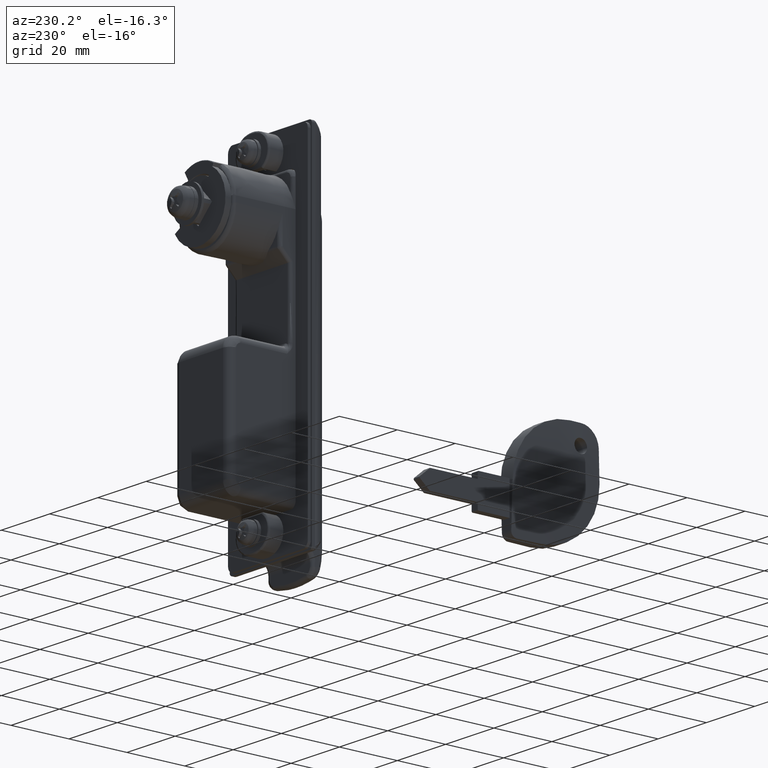
[diagram: clean part render]
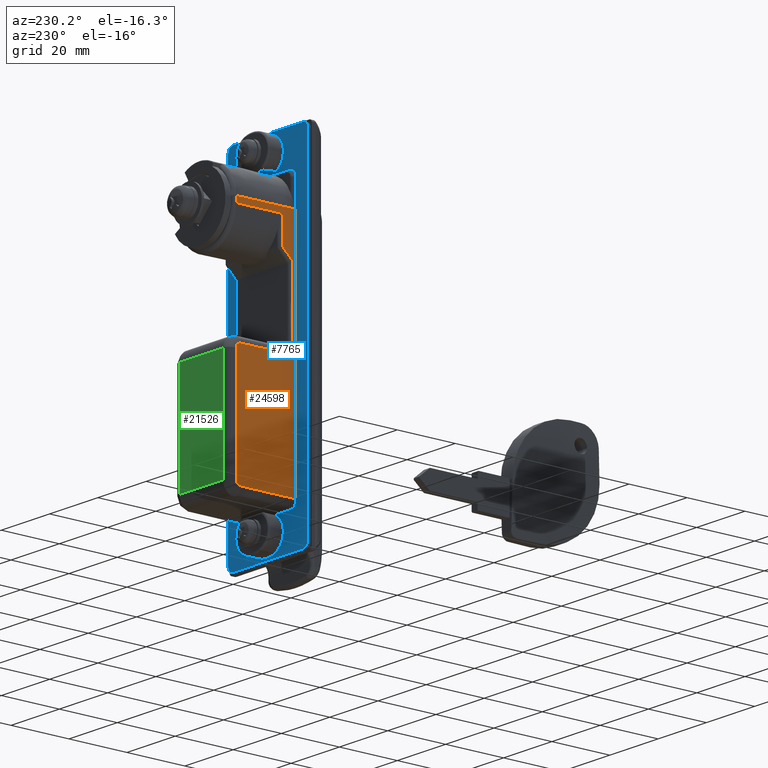
[diagram: same view with three faces highlighted in distinct colors, each labeled with its STEP entity id]
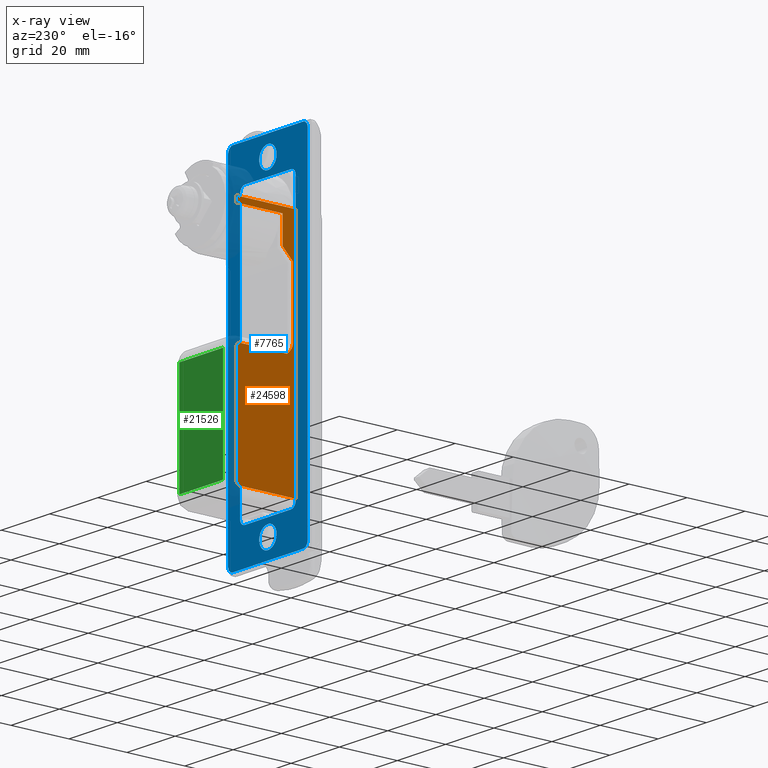
[diagram: x-ray of the same camera — body ghosted, the three highlighted faces saturated]
A machine part, auxiliary view with three faces highlighted in distinct colors.
The next image is the same camera in x-ray (body ghosted, the three faces saturated) — at least one of them is partly hidden behind the body in this view.
Their STEP definitions:

[orange] entity #24598 — the highlighted face is a freeform B-spline surface patch.
#22011=CARTESIAN_POINT('',(-11.500000000000000,28.500000000037399,-0.999999999985167));
#22012=VERTEX_POINT('',#22011);
#22026=CARTESIAN_POINT('',(-11.500000000000000,28.500000000037399,1.000000000015006));
#22027=VERTEX_POINT('',#22026);
#22028=CARTESIAN_POINT('',(-11.500000000000000,28.500000000037399,1.000000000015006));
#22029=CARTESIAN_POINT('',(-11.500000000000000,28.500000000037399,-0.999999999985167));
#22030=QUASI_UNIFORM_CURVE('',1,(#22028,#22029),.UNSPECIFIED.,.F.,.U.);
#22031=EDGE_CURVE('',#22027,#22012,#22030,.T.);
#22444=CARTESIAN_POINT('',(-11.499999999999760,8.000000000000231,10.000000000018460));
#22445=VERTEX_POINT('',#22444);
#22491=CARTESIAN_POINT('',(-11.500000000000000,8.000000000000231,1.000000000015006));
#22492=VERTEX_POINT('',#22491);
#22517=CARTESIAN_POINT('',(-11.499999999999760,8.000000000000231,10.000000000018460));
#22518=CARTESIAN_POINT('',(-11.500000000000000,8.000000000000231,1.000000000015006));
#22519=QUASI_UNIFORM_CURVE('',1,(#22517,#22518),.UNSPECIFIED.,.F.,.U.);
#22520=EDGE_CURVE('',#22445,#22492,#22519,.T.);
#23047=CARTESIAN_POINT('',(-11.499999999999760,8.999999999926670,-36.337722339830847));
#23048=VERTEX_POINT('',#23047);
#23059=CARTESIAN_POINT('',(-11.499999999999760,10.999999999926660,-39.499999999999197));
#23060=VERTEX_POINT('',#23059);
#23088=CARTESIAN_POINT('',(-11.499999999999760,8.999999999926670,-36.337722339830847));
#23089=CARTESIAN_POINT('',(-11.499999999999771,8.999999999926677,-36.500899916687878));
#23090=CARTESIAN_POINT('',(-11.499999999999760,9.016151110124476,-36.661272146820508));
#23091=CARTESIAN_POINT('',(-11.499999999999760,9.061451156469461,-36.898170177665122));
#23092=CARTESIAN_POINT('',(-11.499999999999760,9.080090570570690,-36.976521416559713));
#23093=CARTESIAN_POINT('',(-11.499999999999760,9.124163929874779,-37.132043726834908));
#23094=CARTESIAN_POINT('',(-11.499999999999760,9.149737217216908,-37.209556756030928));
#23095=CARTESIAN_POINT('',(-11.499999999999760,9.235185518348388,-37.437374300737673));
#23096=CARTESIAN_POINT('',(-11.499999999999760,9.303552753331655,-37.582944592164608));
#23097=CARTESIAN_POINT('',(-11.499999999999760,9.459205951650956,-37.863618254668602));
#23098=CARTESIAN_POINT('',(-11.499999999999760,9.546529948660597,-37.998700583346562));
#23099=CARTESIAN_POINT('',(-11.499999999999760,9.689455264253461,-38.194718563034982));
#23100=CARTESIAN_POINT('',(-11.499999999999760,9.739167925378572,-38.259037748883813));
#23101=CARTESIAN_POINT('',(-11.499999999999760,9.841207792355133,-38.384525173705462));
#23102=CARTESIAN_POINT('',(-11.499999999999760,9.998502716011254,-38.568491444911267));
#23103=CARTESIAN_POINT('',(-11.499999999999760,10.166643536216210,-38.741535649950350));
#23104=CARTESIAN_POINT('',(-11.499999999999760,10.397304834447860,-38.965742255718268));
#23105=CARTESIAN_POINT('',(-11.499999999999760,10.515877124079120,-39.074581152378322));
#23106=CARTESIAN_POINT('',(-11.499999999999760,10.696198733749171,-39.235359023518427));
#23107=CARTESIAN_POINT('',(-11.499999999999760,10.756715726839310,-39.288538979452888));
#23108=CARTESIAN_POINT('',(-11.499999999999760,10.878161242043539,-39.394484472171740));
#23109=CARTESIAN_POINT('',(-11.499999999999760,10.939234581588940,-39.447375428602847));
#23110=CARTESIAN_POINT('',(-11.499999999999760,10.999999999926660,-39.499999999999197));
#23111=B_SPLINE_CURVE_WITH_KNOTS('',3,(#23088,#23089,#23090,#23091,#23092,#23093,#23094,#23095,#23096,#23097,#23098,#23099,#23100,#23101,#23102,#23103,#23104,#23105,#23106,#23107,#23108,#23109,#23110),.UNSPECIFIED.,.F.,.U.,(4,2,2,2,2,2,2,1,2,2,2,4),(0.0,0.125000000000002,0.187500000000003,0.250000000000004,0.375000000000001,0.499999999999998,0.562499999999996,0.624999999999995,0.749999999999997,0.874999999999998,0.937499999999999,1.0),.UNSPECIFIED.);
#23112=EDGE_CURVE('',#23048,#23060,#23111,.T.);
#23134=CARTESIAN_POINT('',(-11.499999999999760,8.999999999926670,-13.585786437626380));
#23135=VERTEX_POINT('',#23134);
#23148=CARTESIAN_POINT('',(-11.499999999999760,8.999999999926670,-13.585786437626380));
#23149=CARTESIAN_POINT('',(-11.499999999999760,8.999999999926670,-36.337722339830847));
#23150=QUASI_UNIFORM_CURVE('',1,(#23148,#23149),.UNSPECIFIED.,.F.,.U.);
#23151=EDGE_CURVE('',#23135,#23048,#23150,.T.);
#23170=CARTESIAN_POINT('',(-11.499999999999760,12.515788983960420,-10.069997453591441));
#23171=VERTEX_POINT('',#23170);
#23187=CARTESIAN_POINT('',(-11.499999999999760,12.515788983960420,-10.069997453591441));
#23188=CARTESIAN_POINT('',(-11.499999999999760,8.999999999926670,-13.585786437626380));
#23189=QUASI_UNIFORM_CURVE('',1,(#23187,#23188),.UNSPECIFIED.,.F.,.U.);
#23190=EDGE_CURVE('',#23171,#23135,#23189,.T.);
#23261=CARTESIAN_POINT('',(-11.499999999999760,12.515788983960420,-0.999999999985167));
#23262=VERTEX_POINT('',#23261);
#23289=CARTESIAN_POINT('',(-11.499999999999760,12.515788983960420,-0.999999999985167));
#23290=CARTESIAN_POINT('',(-11.499999999999760,12.515788983960420,-10.069997453591441));
#23291=QUASI_UNIFORM_CURVE('',1,(#23289,#23290),.UNSPECIFIED.,.F.,.U.);
#23292=EDGE_CURVE('',#23262,#23171,#23291,.T.);
#23840=CARTESIAN_POINT('',(-11.499999999999760,7.000000000000231,10.000000000018460));
#23841=VERTEX_POINT('',#23840);
#23842=CARTESIAN_POINT('',(-11.499999999999760,7.000000000000231,10.000000000018460));
#23843=CARTESIAN_POINT('',(-11.499999999999760,8.000000000000231,10.000000000018460));
#23844=QUASI_UNIFORM_CURVE('',1,(#23842,#23843),.UNSPECIFIED.,.F.,.U.);
#23845=EDGE_CURVE('',#23841,#22445,#23844,.T.);
#23876=CARTESIAN_POINT('',(-11.499999999999760,26.999999999966050,-39.499999999999197));
#23877=VERTEX_POINT('',#23876);
#23878=CARTESIAN_POINT('',(-11.499999999999760,10.999999999926660,-39.499999999999197));
#23879=CARTESIAN_POINT('',(-11.499999999999760,26.999999999966050,-39.499999999999197));
#23880=QUASI_UNIFORM_CURVE('',1,(#23878,#23879),.UNSPECIFIED.,.F.,.U.);
#23881=EDGE_CURVE('',#23060,#23877,#23880,.T.);
#23944=CARTESIAN_POINT('',(-11.499999999999760,28.499999999966050,-40.999999999999197));
#23945=VERTEX_POINT('',#23944);
#23959=CARTESIAN_POINT('',(-11.499999999999760,26.999999999966050,-39.499999999999197));
#23960=CARTESIAN_POINT('',(-11.499999999999758,28.499999999966054,-39.499999999999211));
#23961=CARTESIAN_POINT('',(-11.499999999999760,28.499999999966050,-40.999999999999197));
#23969=(BOUNDED_CURVE()B_SPLINE_CURVE(2,(#23959,#23960,#23961),.UNSPECIFIED.,.F.,.U.)CURVE()GEOMETRIC_REPRESENTATION_ITEM()QUASI_UNIFORM_CURVE()RATIONAL_B_SPLINE_CURVE((1.0,0.707106781186548,1.0))REPRESENTATION_ITEM(''));
#23970=EDGE_CURVE('',#23877,#23945,#23969,.T.);
#23991=CARTESIAN_POINT('',(-11.499999999999760,28.499999999966050,-77.500000000000000));
#23992=VERTEX_POINT('',#23991);
#24006=CARTESIAN_POINT('',(-11.499999999999760,28.499999999966050,-40.999999999999197));
#24007=CARTESIAN_POINT('',(-11.499999999999760,28.499999999966050,-77.500000000000000));
#24008=QUASI_UNIFORM_CURVE('',1,(#24006,#24007),.UNSPECIFIED.,.F.,.U.);
#24009=EDGE_CURVE('',#23945,#23992,#24008,.T.);
#24051=CARTESIAN_POINT('',(-11.499999999999760,26.999999999966050,-79.0));
#24052=VERTEX_POINT('',#24051);
#24066=CARTESIAN_POINT('',(-11.499999999999760,28.499999999966050,-77.500000000000000));
#24067=CARTESIAN_POINT('',(-11.499999999999758,28.499999999966054,-79.0));
#24068=CARTESIAN_POINT('',(-11.499999999999760,26.999999999966050,-79.0));
#24076=(BOUNDED_CURVE()B_SPLINE_CURVE(2,(#24066,#24067,#24068),.UNSPECIFIED.,.F.,.U.)CURVE()GEOMETRIC_REPRESENTATION_ITEM()QUASI_UNIFORM_CURVE()RATIONAL_B_SPLINE_CURVE((1.0,0.707106781186548,1.0))REPRESENTATION_ITEM(''));
#24077=EDGE_CURVE('',#23992,#24052,#24076,.T.);
#24110=CARTESIAN_POINT('',(-11.499999999999760,7.000000000000231,-79.0));
#24111=VERTEX_POINT('',#24110);
#24127=CARTESIAN_POINT('',(-11.499999999999760,26.999999999966050,-79.0));
#24128=CARTESIAN_POINT('',(-11.499999999999760,7.000000000000231,-79.0));
#24129=QUASI_UNIFORM_CURVE('',1,(#24127,#24128),.UNSPECIFIED.,.F.,.U.);
#24130=EDGE_CURVE('',#24052,#24111,#24129,.T.);
#24463=CARTESIAN_POINT('',(-11.500000000000000,28.500000000037399,-0.999999999985167));
#24464=CARTESIAN_POINT('',(-11.499999999999760,12.515788983960420,-0.999999999985167));
#24465=QUASI_UNIFORM_CURVE('',1,(#24463,#24464),.UNSPECIFIED.,.F.,.U.);
#24466=EDGE_CURVE('',#22012,#23262,#24465,.T.);
#24504=CARTESIAN_POINT('',(-11.500000000000000,28.500000000037399,1.000000000015006));
#24505=CARTESIAN_POINT('',(-11.500000000000000,8.000000000000231,1.000000000015006));
#24506=QUASI_UNIFORM_CURVE('',1,(#24504,#24505),.UNSPECIFIED.,.F.,.U.);
#24507=EDGE_CURVE('',#22027,#22492,#24506,.T.);
#24572=CARTESIAN_POINT('',(-11.499999999999760,5.926075041669544,-83.445549827501665));
#24573=CARTESIAN_POINT('',(-11.499999999999760,29.573925535043031,-83.445549827501665));
#24574=CARTESIAN_POINT('',(-11.499999999999760,5.926075041669544,14.445552214686140));
#24575=CARTESIAN_POINT('',(-11.499999999999760,29.573925535043031,14.445552214686140));
#24576=B_SPLINE_SURFACE_WITH_KNOTS('',1,1,((#24572,#24574),(#24573,#24575)),.UNSPECIFIED.,.F.,.F.,.U.,(2,2),(2,2),(0.0,23.647850493373490),(0.0,97.891102042187796),.UNSPECIFIED.);
#24577=ORIENTED_EDGE('',*,*,#24507,.F.);
#24578=ORIENTED_EDGE('',*,*,#22031,.T.);
#24579=ORIENTED_EDGE('',*,*,#24466,.T.);
#24580=ORIENTED_EDGE('',*,*,#23292,.T.);
#24581=ORIENTED_EDGE('',*,*,#23190,.T.);
#24582=ORIENTED_EDGE('',*,*,#23151,.T.);
#24583=ORIENTED_EDGE('',*,*,#23112,.T.);
#24584=ORIENTED_EDGE('',*,*,#23881,.T.);
#24585=ORIENTED_EDGE('',*,*,#23970,.T.);
#24586=ORIENTED_EDGE('',*,*,#24009,.T.);
#24587=ORIENTED_EDGE('',*,*,#24077,.T.);
#24588=ORIENTED_EDGE('',*,*,#24130,.T.);
#24589=CARTESIAN_POINT('',(-11.499999999999760,7.000000000000231,10.000000000018460));
#24590=CARTESIAN_POINT('',(-11.499999999999760,7.000000000000231,-79.0));
#24591=QUASI_UNIFORM_CURVE('',1,(#24589,#24590),.UNSPECIFIED.,.F.,.U.);
#24592=EDGE_CURVE('',#23841,#24111,#24591,.T.);
#24593=ORIENTED_EDGE('',*,*,#24592,.F.);
#24594=ORIENTED_EDGE('',*,*,#23845,.T.);
#24595=ORIENTED_EDGE('',*,*,#22520,.T.);
#24596=EDGE_LOOP('',(#24577,#24578,#24579,#24580,#24581,#24582,#24583,#24584,#24585,#24586,#24587,#24588,#24593,#24594,#24595));
#24597=FACE_OUTER_BOUND('',#24596,.T.);
#24598=ADVANCED_FACE('',(#24597),#24576,.F.);

[blue] entity #7765 — the highlighted face is a freeform B-spline surface patch.
#6894=CARTESIAN_POINT('',(-3.588902401401668,8.000000000000231,-87.282452745089486));
#6895=VERTEX_POINT('',#6894);
#6901=CARTESIAN_POINT('',(5.733326E-014,8.000000000000231,-83.399999999992303));
#6902=VERTEX_POINT('',#6901);
#6903=CARTESIAN_POINT('',(-3.588902401401669,8.000000000000231,-87.282452745089472));
#6904=CARTESIAN_POINT('',(-3.599999999999943,8.000000000000231,-87.141444385459494));
#6905=CARTESIAN_POINT('',(-3.599999999999943,8.000000000000231,-86.999999999992312));
#6906=CARTESIAN_POINT('',(-3.599999999999942,8.000000000000231,-83.399999999992303));
#6907=CARTESIAN_POINT('',(5.733326E-014,8.000000000000231,-83.399999999992303));
#6915=(BOUNDED_CURVE()B_SPLINE_CURVE(2,(#6903,#6904,#6905,#6906,#6907),.UNSPECIFIED.,.F.,.U.)B_SPLINE_CURVE_WITH_KNOTS((3,2,3),(0.736331300609986,0.750000000000000,1.0),.UNSPECIFIED.)CURVE()GEOMETRIC_REPRESENTATION_ITEM()RATIONAL_B_SPLINE_CURVE((0.969723356124274,0.983986122554662,1.0,0.707106781186547,1.0))REPRESENTATION_ITEM(''));
#6916=EDGE_CURVE('',#6895,#6902,#6915,.T.);
#6918=CARTESIAN_POINT('',(3.588902401401782,8.000000000000231,-86.717547254895138));
#6919=VERTEX_POINT('',#6918);
#6920=CARTESIAN_POINT('',(5.733326E-014,8.000000000000231,-83.399999999992303));
#6921=CARTESIAN_POINT('',(3.327805769525998,8.000000000000231,-83.399999999992318));
#6922=CARTESIAN_POINT('',(3.588902401401783,8.000000000000231,-86.717547254895138));
#6930=(BOUNDED_CURVE()B_SPLINE_CURVE(2,(#6920,#6921,#6922),.UNSPECIFIED.,.F.,.U.)B_SPLINE_CURVE_WITH_KNOTS((3,3),(0.0,0.236331300609986),.UNSPECIFIED.)CURVE()GEOMETRIC_REPRESENTATION_ITEM()RATIONAL_B_SPLINE_CURVE((1.0,0.723120658631886,0.969723356124274))REPRESENTATION_ITEM(''));
#6931=EDGE_CURVE('',#6902,#6919,#6930,.T.);
#6977=CARTESIAN_POINT('',(5.733326E-014,8.000000000000231,-90.599999999992306));
#6978=VERTEX_POINT('',#6977);
#6979=CARTESIAN_POINT('',(3.588902401401783,8.000000000000231,-86.717547254895138));
#6980=CARTESIAN_POINT('',(3.600000000000057,8.000000000000231,-86.858555614525130));
#6981=CARTESIAN_POINT('',(3.600000000000057,8.000000000000231,-86.999999999992312));
#6982=CARTESIAN_POINT('',(3.600000000000057,8.000000000000231,-90.599999999992306));
#6983=CARTESIAN_POINT('',(5.733326E-014,8.000000000000231,-90.599999999992306));
#6991=(BOUNDED_CURVE()B_SPLINE_CURVE(2,(#6979,#6980,#6981,#6982,#6983),.UNSPECIFIED.,.F.,.U.)B_SPLINE_CURVE_WITH_KNOTS((3,2,3),(0.236331300609986,0.250000000000000,0.500000000000000),.UNSPECIFIED.)CURVE()GEOMETRIC_REPRESENTATION_ITEM()RATIONAL_B_SPLINE_CURVE((0.969723356124274,0.983986122554661,1.0,0.707106781186547,1.0))REPRESENTATION_ITEM(''));
#6992=EDGE_CURVE('',#6919,#6978,#6991,.T.);
#6994=CARTESIAN_POINT('',(5.733326E-014,8.000000000000231,-90.599999999992306));
#6995=CARTESIAN_POINT('',(-3.327805769525885,8.000000000000231,-90.599999999992306));
#6996=CARTESIAN_POINT('',(-3.588902401401667,8.000000000000231,-87.282452745089472));
#7004=(BOUNDED_CURVE()B_SPLINE_CURVE(2,(#6994,#6995,#6996),.UNSPECIFIED.,.F.,.U.)B_SPLINE_CURVE_WITH_KNOTS((3,3),(0.500000000000000,0.736331300609986),.UNSPECIFIED.)CURVE()GEOMETRIC_REPRESENTATION_ITEM()RATIONAL_B_SPLINE_CURVE((1.0,0.723120658631886,0.969723356124274))REPRESENTATION_ITEM(''));
#7005=EDGE_CURVE('',#6978,#6895,#7004,.T.);
#7076=CARTESIAN_POINT('',(-3.588902401401668,8.000000000000231,17.717547254910428));
#7077=VERTEX_POINT('',#7076);
#7083=CARTESIAN_POINT('',(5.733326E-014,8.000000000000231,21.600000000007601));
#7084=VERTEX_POINT('',#7083);
#7085=CARTESIAN_POINT('',(-3.588902401401668,8.000000000000231,17.717547254910428));
#7086=CARTESIAN_POINT('',(-3.599999999999942,8.000000000000231,17.858555614540421));
#7087=CARTESIAN_POINT('',(-3.599999999999943,8.000000000000231,18.000000000007599));
#7088=CARTESIAN_POINT('',(-3.599999999999942,8.000000000000231,21.600000000007601));
#7089=CARTESIAN_POINT('',(5.733326E-014,8.000000000000231,21.600000000007601));
#7097=(BOUNDED_CURVE()B_SPLINE_CURVE(2,(#7085,#7086,#7087,#7088,#7089),.UNSPECIFIED.,.F.,.U.)B_SPLINE_CURVE_WITH_KNOTS((3,2,3),(0.736331300609986,0.750000000000000,1.0),.UNSPECIFIED.)CURVE()GEOMETRIC_REPRESENTATION_ITEM()RATIONAL_B_SPLINE_CURVE((0.969723356124274,0.983986122554662,1.0,0.707106781186547,1.0))REPRESENTATION_ITEM(''));
#7098=EDGE_CURVE('',#7077,#7084,#7097,.T.);
#7100=CARTESIAN_POINT('',(3.588902401401783,8.000000000000231,18.282452745104770));
#7101=VERTEX_POINT('',#7100);
#7102=CARTESIAN_POINT('',(5.733326E-014,8.000000000000231,21.600000000007601));
#7103=CARTESIAN_POINT('',(3.327805769526005,8.000000000000231,21.600000000007604));
#7104=CARTESIAN_POINT('',(3.588902401401783,8.000000000000231,18.282452745104766));
#7112=(BOUNDED_CURVE()B_SPLINE_CURVE(2,(#7102,#7103,#7104),.UNSPECIFIED.,.F.,.U.)B_SPLINE_CURVE_WITH_KNOTS((3,3),(0.0,0.236331300609986),.UNSPECIFIED.)CURVE()GEOMETRIC_REPRESENTATION_ITEM()RATIONAL_B_SPLINE_CURVE((1.0,0.723120658631886,0.969723356124274))REPRESENTATION_ITEM(''));
#7113=EDGE_CURVE('',#7084,#7101,#7112,.T.);
#7159=CARTESIAN_POINT('',(5.733326E-014,8.000000000000231,14.400000000007600));
#7160=VERTEX_POINT('',#7159);
#7161=CARTESIAN_POINT('',(3.588902401401784,8.000000000000231,18.282452745104770));
#7162=CARTESIAN_POINT('',(3.600000000000058,8.000000000000235,18.141444385474784));
#7163=CARTESIAN_POINT('',(3.600000000000057,8.000000000000231,18.000000000007599));
#7164=CARTESIAN_POINT('',(3.600000000000057,8.000000000000231,14.400000000007605));
#7165=CARTESIAN_POINT('',(5.733326E-014,8.000000000000231,14.400000000007600));
#7173=(BOUNDED_CURVE()B_SPLINE_CURVE(2,(#7161,#7162,#7163,#7164,#7165),.UNSPECIFIED.,.F.,.U.)B_SPLINE_CURVE_WITH_KNOTS((3,2,3),(0.236331300609986,0.250000000000000,0.500000000000000),.UNSPECIFIED.)CURVE()GEOMETRIC_REPRESENTATION_ITEM()RATIONAL_B_SPLINE_CURVE((0.969723356124274,0.983986122554662,1.0,0.707106781186547,1.0))REPRESENTATION_ITEM(''));
#7174=EDGE_CURVE('',#7101,#7160,#7173,.T.);
#7176=CARTESIAN_POINT('',(5.733326E-014,8.000000000000231,14.400000000007600));
#7177=CARTESIAN_POINT('',(-3.327805769525888,8.000000000000231,14.400000000007598));
#7178=CARTESIAN_POINT('',(-3.588902401401668,8.000000000000231,17.717547254910425));
#7186=(BOUNDED_CURVE()B_SPLINE_CURVE(2,(#7176,#7177,#7178),.UNSPECIFIED.,.F.,.U.)B_SPLINE_CURVE_WITH_KNOTS((3,3),(0.500000000000000,0.736331300609986),.UNSPECIFIED.)CURVE()GEOMETRIC_REPRESENTATION_ITEM()RATIONAL_B_SPLINE_CURVE((1.0,0.723120658631886,0.969723356124274))REPRESENTATION_ITEM(''));
#7187=EDGE_CURVE('',#7160,#7077,#7186,.T.);
#7220=CARTESIAN_POINT('',(14.500000000037399,8.000000000000231,24.499999999975749));
#7221=VERTEX_POINT('',#7220);
#7227=CARTESIAN_POINT('',(-14.499999999963620,8.000000000000231,24.499999999991498));
#7228=VERTEX_POINT('',#7227);
#7229=CARTESIAN_POINT('',(-14.499999999963620,8.000000000000231,24.499999999991498));
#7230=CARTESIAN_POINT('',(14.500000000037399,8.000000000000231,24.499999999975749));
#7231=QUASI_UNIFORM_CURVE('',1,(#7229,#7230),.UNSPECIFIED.,.F.,.U.);
#7232=EDGE_CURVE('',#7228,#7221,#7231,.T.);
#7272=CARTESIAN_POINT('',(-16.499999999963599,8.000000000000233,22.499999999991498));
#7273=VERTEX_POINT('',#7272);
#7274=CARTESIAN_POINT('',(-16.499999999963620,8.000000000000233,22.499999999991498));
#7275=CARTESIAN_POINT('',(-16.499999999963620,8.000000000000233,24.499999999991509));
#7276=CARTESIAN_POINT('',(-14.499999999963620,8.000000000000231,24.499999999991498));
#7284=(BOUNDED_CURVE()B_SPLINE_CURVE(2,(#7274,#7275,#7276),.UNSPECIFIED.,.F.,.U.)CURVE()GEOMETRIC_REPRESENTATION_ITEM()QUASI_UNIFORM_CURVE()RATIONAL_B_SPLINE_CURVE((1.0,0.707106781186548,1.0))REPRESENTATION_ITEM(''));
#7285=EDGE_CURVE('',#7273,#7228,#7284,.T.);
#7308=CARTESIAN_POINT('',(-16.499999999963599,8.000000000000233,-91.500000000005087));
#7309=VERTEX_POINT('',#7308);
#7310=CARTESIAN_POINT('',(-16.499999999963599,8.000000000000233,-91.500000000005087));
#7311=CARTESIAN_POINT('',(-16.499999999963599,8.000000000000233,22.499999999991498));
#7312=QUASI_UNIFORM_CURVE('',1,(#7310,#7311),.UNSPECIFIED.,.F.,.U.);
#7313=EDGE_CURVE('',#7309,#7273,#7312,.T.);
#7353=CARTESIAN_POINT('',(-14.499999999964700,8.000000000000231,-93.500000000005087));
#7354=VERTEX_POINT('',#7353);
#7355=CARTESIAN_POINT('',(-14.499999999964700,8.000000000000231,-93.500000000005087));
#7356=CARTESIAN_POINT('',(-16.499999999963627,8.000000000000233,-93.500000000003993));
#7357=CARTESIAN_POINT('',(-16.499999999963620,8.000000000000233,-91.500000000005087));
#7365=(BOUNDED_CURVE()B_SPLINE_CURVE(2,(#7355,#7356,#7357),.UNSPECIFIED.,.F.,.U.)CURVE()GEOMETRIC_REPRESENTATION_ITEM()QUASI_UNIFORM_CURVE()RATIONAL_B_SPLINE_CURVE((1.0,0.707106781186738,1.0))REPRESENTATION_ITEM(''));
#7366=EDGE_CURVE('',#7354,#7309,#7365,.T.);
#7389=CARTESIAN_POINT('',(14.500000000036319,8.000000000000231,-93.500000000020705));
#7390=VERTEX_POINT('',#7389);
#7391=CARTESIAN_POINT('',(14.500000000036319,8.000000000000231,-93.500000000020705));
#7392=CARTESIAN_POINT('',(-14.499999999964700,8.000000000000231,-93.500000000005087));
#7393=QUASI_UNIFORM_CURVE('',1,(#7391,#7392),.UNSPECIFIED.,.F.,.U.);
#7394=EDGE_CURVE('',#7390,#7354,#7393,.T.);
#7434=CARTESIAN_POINT('',(16.500000000036302,8.000000000000229,-91.500000000020705));
#7435=VERTEX_POINT('',#7434);
#7436=CARTESIAN_POINT('',(16.500000000036319,8.000000000000229,-91.500000000020705));
#7437=CARTESIAN_POINT('',(16.500000000036323,8.000000000000229,-93.500000000020705));
#7438=CARTESIAN_POINT('',(14.500000000036319,8.000000000000231,-93.500000000020705));
#7446=(BOUNDED_CURVE()B_SPLINE_CURVE(2,(#7436,#7437,#7438),.UNSPECIFIED.,.F.,.U.)CURVE()GEOMETRIC_REPRESENTATION_ITEM()QUASI_UNIFORM_CURVE()RATIONAL_B_SPLINE_CURVE((1.0,0.707106781186548,1.0))REPRESENTATION_ITEM(''));
#7447=EDGE_CURVE('',#7435,#7390,#7446,.T.);
#7470=CARTESIAN_POINT('',(16.500000000036302,8.000000000000229,22.499999999975849));
#7471=VERTEX_POINT('',#7470);
#7472=CARTESIAN_POINT('',(16.500000000036302,8.000000000000229,22.499999999975849));
#7473=CARTESIAN_POINT('',(16.500000000036302,8.000000000000229,-91.500000000020705));
#7474=QUASI_UNIFORM_CURVE('',1,(#7472,#7473),.UNSPECIFIED.,.F.,.U.);
#7475=EDGE_CURVE('',#7471,#7435,#7474,.T.);
#7513=CARTESIAN_POINT('',(14.500000000037399,8.000000000000231,24.499999999975749));
#7514=CARTESIAN_POINT('',(16.500000000036323,8.000000000000229,24.499999999975852));
#7515=CARTESIAN_POINT('',(16.500000000036319,8.000000000000229,22.499999999975849));
#7523=(BOUNDED_CURVE()B_SPLINE_CURVE(2,(#7513,#7514,#7515),.UNSPECIFIED.,.F.,.U.)CURVE()GEOMETRIC_REPRESENTATION_ITEM()QUASI_UNIFORM_CURVE()RATIONAL_B_SPLINE_CURVE((1.0,0.707106781186548,1.0))REPRESENTATION_ITEM(''));
#7524=EDGE_CURVE('',#7221,#7471,#7523,.T.);
#7648=CARTESIAN_POINT('',(18.148349936075888,8.000000000000229,30.394099771285209));
#7649=CARTESIAN_POINT('',(-18.148350821132169,8.000000000000233,30.394099771285209));
#7650=CARTESIAN_POINT('',(18.148349936075888,8.000000000000229,-99.394102936321062));
#7651=CARTESIAN_POINT('',(-18.148350821132169,8.000000000000233,-99.394102936321062));
#7652=B_SPLINE_SURFACE_WITH_KNOTS('',1,1,((#7648,#7650),(#7649,#7651)),.UNSPECIFIED.,.F.,.F.,.U.,(2,2),(2,2),(0.0,36.296700757208058),(0.0,129.788202707606300),.UNSPECIFIED.);
#7653=ORIENTED_EDGE('',*,*,#7524,.T.);
#7654=ORIENTED_EDGE('',*,*,#7475,.T.);
#7655=ORIENTED_EDGE('',*,*,#7447,.T.);
#7656=ORIENTED_EDGE('',*,*,#7394,.T.);
#7657=ORIENTED_EDGE('',*,*,#7366,.T.);
#7658=ORIENTED_EDGE('',*,*,#7313,.T.);
#7659=ORIENTED_EDGE('',*,*,#7285,.T.);
#7660=ORIENTED_EDGE('',*,*,#7232,.T.);
#7661=EDGE_LOOP('',(#7653,#7654,#7655,#7656,#7657,#7658,#7659,#7660));
#7662=FACE_OUTER_BOUND('',#7661,.T.);
#7663=CARTESIAN_POINT('',(11.500000000000000,8.000000000000231,-79.500000000003212));
#7664=VERTEX_POINT('',#7663);
#7665=CARTESIAN_POINT('',(9.500000000000000,8.000000000000231,-81.500000000003311));
#7666=VERTEX_POINT('',#7665);
#7667=CARTESIAN_POINT('',(11.500000000000000,8.000000000000231,-79.500000000003212));
#7668=CARTESIAN_POINT('',(11.500000000000000,8.000000000000231,-81.500000000003212));
#7669=CARTESIAN_POINT('',(9.500000000000000,8.000000000000231,-81.500000000003212));
#7677=(BOUNDED_CURVE()B_SPLINE_CURVE(2,(#7667,#7668,#7669),.UNSPECIFIED.,.F.,.U.)CURVE()GEOMETRIC_REPRESENTATION_ITEM()QUASI_UNIFORM_CURVE()RATIONAL_B_SPLINE_CURVE((1.0,0.707106781186548,1.0))REPRESENTATION_ITEM(''));
#7678=EDGE_CURVE('',#7664,#7666,#7677,.T.);
#7679=ORIENTED_EDGE('',*,*,#7678,.F.);
#7680=CARTESIAN_POINT('',(11.500000000000220,8.000000000000231,10.500000000011539));
#7681=VERTEX_POINT('',#7680);
#7682=CARTESIAN_POINT('',(11.500000000000000,8.000000000000231,-79.500000000003212));
#7683=CARTESIAN_POINT('',(11.500000000000220,8.000000000000231,10.500000000011539));
#7684=QUASI_UNIFORM_CURVE('',1,(#7682,#7683),.UNSPECIFIED.,.F.,.U.);
#7685=EDGE_CURVE('',#7664,#7681,#7684,.T.);
#7686=ORIENTED_EDGE('',*,*,#7685,.T.);
#7687=CARTESIAN_POINT('',(9.500000000000231,8.000000000000231,12.500000000011539));
#7688=VERTEX_POINT('',#7687);
#7689=CARTESIAN_POINT('',(9.500000000000231,8.000000000000231,12.500000000011539));
#7690=CARTESIAN_POINT('',(11.500000000000231,8.000000000000231,12.500000000011541));
#7691=CARTESIAN_POINT('',(11.500000000000229,8.000000000000231,10.500000000011539));
#7699=(BOUNDED_CURVE()B_SPLINE_CURVE(2,(#7689,#7690,#7691),.UNSPECIFIED.,.F.,.U.)CURVE()GEOMETRIC_REPRESENTATION_ITEM()QUASI_UNIFORM_CURVE()RATIONAL_B_SPLINE_CURVE((1.0,0.707106781186548,1.0))REPRESENTATION_ITEM(''));
#7700=EDGE_CURVE('',#7688,#7681,#7699,.T.);
#7701=ORIENTED_EDGE('',*,*,#7700,.F.);
#7702=CARTESIAN_POINT('',(-9.499999999999261,8.000000000000231,12.500000000018639));
#7703=VERTEX_POINT('',#7702);
#7704=CARTESIAN_POINT('',(9.500000000000231,8.000000000000231,12.500000000011539));
#7705=CARTESIAN_POINT('',(-9.499999999999261,8.000000000000231,12.500000000018639));
#7706=QUASI_UNIFORM_CURVE('',1,(#7704,#7705),.UNSPECIFIED.,.F.,.U.);
#7707=EDGE_CURVE('',#7688,#7703,#7706,.T.);
#7708=ORIENTED_EDGE('',*,*,#7707,.T.);
#7709=CARTESIAN_POINT('',(-11.499999999999760,8.000000000000231,10.500000000018639));
#7710=VERTEX_POINT('',#7709);
#7711=CARTESIAN_POINT('',(-11.499999999999771,8.000000000000231,10.500000000018639));
#7712=CARTESIAN_POINT('',(-11.499999999999773,8.000000000000231,12.500000000018643));
#7713=CARTESIAN_POINT('',(-9.499999999999771,8.000000000000231,12.500000000018639));
#7721=(BOUNDED_CURVE()B_SPLINE_CURVE(2,(#7711,#7712,#7713),.UNSPECIFIED.,.F.,.U.)CURVE()GEOMETRIC_REPRESENTATION_ITEM()QUASI_UNIFORM_CURVE()RATIONAL_B_SPLINE_CURVE((1.0,0.707106781186548,1.0))REPRESENTATION_ITEM(''));
#7722=EDGE_CURVE('',#7710,#7703,#7721,.T.);
#7723=ORIENTED_EDGE('',*,*,#7722,.F.);
#7724=CARTESIAN_POINT('',(-11.499999999999760,8.000000000000231,-79.500000000003212));
#7725=VERTEX_POINT('',#7724);
#7726=CARTESIAN_POINT('',(-11.499999999999760,8.000000000000231,10.500000000018639));
#7727=CARTESIAN_POINT('',(-11.499999999999760,8.000000000000231,-79.500000000003212));
#7728=QUASI_UNIFORM_CURVE('',1,(#7726,#7727),.UNSPECIFIED.,.F.,.U.);
#7729=EDGE_CURVE('',#7710,#7725,#7728,.T.);
#7730=ORIENTED_EDGE('',*,*,#7729,.T.);
#7731=CARTESIAN_POINT('',(-9.499999999999771,8.000000000000231,-81.500000000003212));
#7732=VERTEX_POINT('',#7731);
#7733=CARTESIAN_POINT('',(-9.499999999999771,8.000000000000231,-81.500000000003212));
#7734=CARTESIAN_POINT('',(-11.499999999999773,8.000000000000231,-81.500000000003212));
#7735=CARTESIAN_POINT('',(-11.499999999999771,8.000000000000231,-79.500000000003212));
#7743=(BOUNDED_CURVE()B_SPLINE_CURVE(2,(#7733,#7734,#7735),.UNSPECIFIED.,.F.,.U.)CURVE()GEOMETRIC_REPRESENTATION_ITEM()QUASI_UNIFORM_CURVE()RATIONAL_B_SPLINE_CURVE((1.0,0.707106781186548,1.0))REPRESENTATION_ITEM(''));
#7744=EDGE_CURVE('',#7732,#7725,#7743,.T.);
#7745=ORIENTED_EDGE('',*,*,#7744,.F.);
#7746=CARTESIAN_POINT('',(-9.499999999999771,8.000000000000231,-81.500000000003212));
#7747=CARTESIAN_POINT('',(9.500000000000000,8.000000000000231,-81.500000000003311));
#7748=QUASI_UNIFORM_CURVE('',1,(#7746,#7747),.UNSPECIFIED.,.F.,.U.);
#7749=EDGE_CURVE('',#7732,#7666,#7748,.T.);
#7750=ORIENTED_EDGE('',*,*,#7749,.T.);
#7751=EDGE_LOOP('',(#7679,#7686,#7701,#7708,#7723,#7730,#7745,#7750));
#7752=FACE_BOUND('',#7751,.T.);
#7753=ORIENTED_EDGE('',*,*,#7187,.F.);
#7754=ORIENTED_EDGE('',*,*,#7174,.F.);
#7755=ORIENTED_EDGE('',*,*,#7113,.F.);
#7756=ORIENTED_EDGE('',*,*,#7098,.F.);
#7757=EDGE_LOOP('',(#7753,#7754,#7755,#7756));
#7758=FACE_BOUND('',#7757,.T.);
#7759=ORIENTED_EDGE('',*,*,#7005,.F.);
#7760=ORIENTED_EDGE('',*,*,#6992,.F.);
#7761=ORIENTED_EDGE('',*,*,#6931,.F.);
#7762=ORIENTED_EDGE('',*,*,#6916,.F.);
#7763=EDGE_LOOP('',(#7759,#7760,#7761,#7762));
#7764=FACE_BOUND('',#7763,.T.);
#7765=ADVANCED_FACE('',(#7662,#7752,#7758,#7764),#7652,.F.);

[green] entity #21526 — the highlighted face is a freeform B-spline surface patch.
#21319=CARTESIAN_POINT('',(9.000000000000002,30.999999999966050,-40.999999999999197));
#21320=VERTEX_POINT('',#21319);
#21334=CARTESIAN_POINT('',(-8.999999999999787,30.999999999966050,-40.999999999999197));
#21335=VERTEX_POINT('',#21334);
#21336=CARTESIAN_POINT('',(-8.999999999999787,30.999999999966050,-40.999999999999197));
#21337=CARTESIAN_POINT('',(9.000000000000002,30.999999999966050,-40.999999999999197));
#21338=QUASI_UNIFORM_CURVE('',1,(#21336,#21337),.UNSPECIFIED.,.F.,.U.);
#21339=EDGE_CURVE('',#21335,#21320,#21338,.T.);
#21499=CARTESIAN_POINT('',(9.899099965112498,30.999999999966040,-39.176825070743227));
#21500=CARTESIAN_POINT('',(9.899099965112498,30.999999999966040,-79.323175908262243));
#21501=CARTESIAN_POINT('',(-9.899100447909909,30.999999999966040,-39.176825070743227));
#21502=CARTESIAN_POINT('',(-9.899100447909909,30.999999999966050,-79.323175908262243));
#21503=B_SPLINE_SURFACE_WITH_KNOTS('',1,1,((#21499,#21501),(#21500,#21502)),.UNSPECIFIED.,.F.,.F.,.U.,(2,2),(2,2),(0.0,40.146350837519009),(0.0,19.798200413022411),.UNSPECIFIED.);
#21504=ORIENTED_EDGE('',*,*,#21339,.T.);
#21505=CARTESIAN_POINT('',(9.000000000000002,30.999999999966050,-77.500000000000000));
#21506=VERTEX_POINT('',#21505);
#21507=CARTESIAN_POINT('',(9.000000000000002,30.999999999966050,-40.999999999999197));
#21508=CARTESIAN_POINT('',(9.000000000000002,30.999999999966050,-77.500000000000000));
#21509=QUASI_UNIFORM_CURVE('',1,(#21507,#21508),.UNSPECIFIED.,.F.,.U.);
#21510=EDGE_CURVE('',#21320,#21506,#21509,.T.);
#21511=ORIENTED_EDGE('',*,*,#21510,.T.);
#21512=CARTESIAN_POINT('',(-8.999999999999787,30.999999999966050,-77.500000000000000));
#21513=VERTEX_POINT('',#21512);
#21514=CARTESIAN_POINT('',(9.000000000000002,30.999999999966050,-77.500000000000000));
#21515=CARTESIAN_POINT('',(-8.999999999999787,30.999999999966050,-77.500000000000000));
#21516=QUASI_UNIFORM_CURVE('',1,(#21514,#21515),.UNSPECIFIED.,.F.,.U.);
#21517=EDGE_CURVE('',#21506,#21513,#21516,.T.);
#21518=ORIENTED_EDGE('',*,*,#21517,.T.);
#21519=CARTESIAN_POINT('',(-8.999999999999787,30.999999999966050,-77.500000000000000));
#21520=CARTESIAN_POINT('',(-8.999999999999787,30.999999999966050,-40.999999999999197));
#21521=QUASI_UNIFORM_CURVE('',1,(#21519,#21520),.UNSPECIFIED.,.F.,.U.);
#21522=EDGE_CURVE('',#21513,#21335,#21521,.T.);
#21523=ORIENTED_EDGE('',*,*,#21522,.T.);
#21524=EDGE_LOOP('',(#21504,#21511,#21518,#21523));
#21525=FACE_OUTER_BOUND('',#21524,.T.);
#21526=ADVANCED_FACE('',(#21525),#21503,.T.);